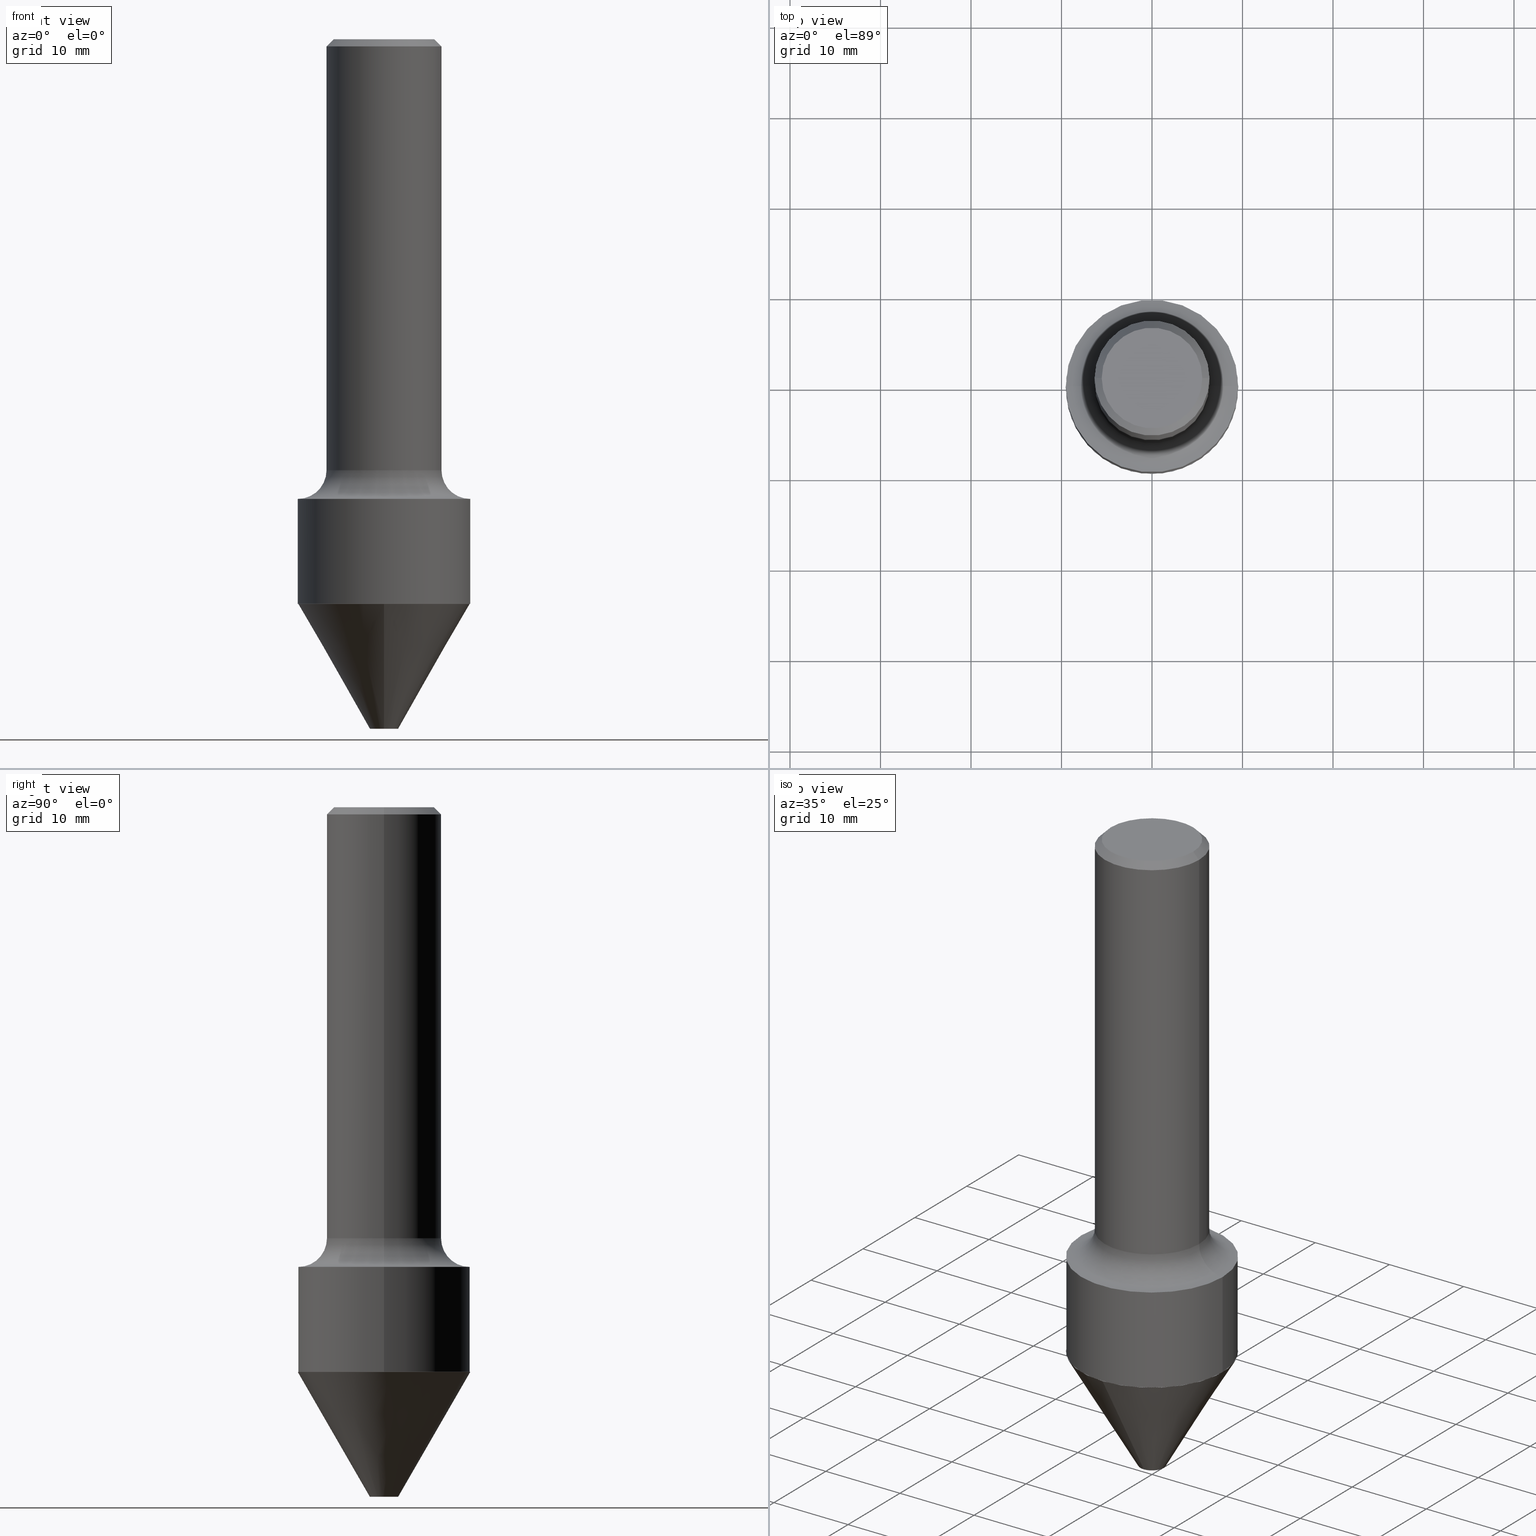
[diagram: canonical four-view strip — front | top / right | iso, engineering-drawing reading convention]
A machine part, canonical four-view strip (front | top / right | iso — engineering-drawing reading convention). The complete STEP part file that produces these views, byte-faithful:
ISO-10303-21;
HEADER;
FILE_DESCRIPTION (( 'STEP AP203' ),
    '1' );
FILE_NAME ('74043.STEP',
    '2025-06-20T12:29:06',
    ( '' ),
    ( '' ),
    'SwSTEP 2.0',
    'SolidWorks 2024',
    '' );
FILE_SCHEMA (( 'CONFIG_CONTROL_DESIGN' ));
ENDSEC;

DATA;
#1 = CARTESIAN_POINT ( 'NONE',  ( 6.007299188982596708E-29, -8.576831142614221112E-15, -2.456502071827208145 ) ) ;
#2 = CARTESIAN_POINT ( 'NONE',  ( 7.629862675297676574E-31, -1.089342177719068640E-16, -0.03120000000000020673 ) ) ;
#3 = CARTESIAN_POINT ( 'NONE',  ( -0.3745000000000000551, -5.913199370018534324E-15, -2.456502071827208145 ) ) ;
#4 = EDGE_LOOP ( 'NONE', ( #300, #338, #310, #416 ) ) ;
#5 = CIRCLE ( 'NONE', #269, 0.3750000000000000555 ) ;
#6 = ORIENTED_EDGE ( 'NONE', *, *, #475, .F. ) ;
#7 = CARTESIAN_POINT ( 'NONE',  ( 2.615119522793570118E-15, 0.3744999999999919504, -2.456502071827209033 ) ) ;
#8 = DIRECTION ( 'NONE',  ( -2.445468806185136597E-29, 3.491481338843145583E-15, 1.000000000000000000 ) ) ;
#9 = ORIENTED_EDGE ( 'NONE', *, *, #228, .T. ) ;
#10 = DIRECTION ( 'NONE',  ( -3.491481338843390130E-15, -0.5000000000000307532, 0.8660254037844207220 ) ) ;
#11 = DIRECTION ( 'NONE',  ( 1.000000000000000000, -6.982962677686266711E-15, 4.883557194083112901E-29 ) ) ;
#12 = DIRECTION ( 'NONE',  ( -2.537124591187716999E-29, 3.360225037996138960E-15, 1.000000000000000000 ) ) ;
#13 = DATE_TIME_ROLE ( 'creation_date' ) ;
#14 = VERTEX_POINT ( 'NONE', #270 ) ;
#15 = VECTOR ( 'NONE', #10, 39.37007874015748854 ) ;
#16 = DIRECTION ( 'NONE',  ( 7.105427357601001859E-15, 1.000000000000000000, -3.491481338843145583E-15 ) ) ;
#17 = APPROVAL_STATUS ( 'not_yet_approved' ) ;
#18 = CIRCLE ( 'NONE', #279, 0.3745000000000000551 ) ;
#19 = EDGE_CURVE ( 'NONE', #511, #14, #169, .T. ) ;
#20 = DIRECTION ( 'NONE',  ( -1.000000000000000000, 7.105427357601001859E-15, 0.000000000000000000 ) ) ;
#21 = ORIENTED_EDGE ( 'NONE', *, *, #228, .F. ) ;
#22 = PLANE ( 'NONE',  #104 ) ;
#23 = CARTESIAN_POINT ( 'NONE',  ( 6.006076454579503906E-29, -8.575085401944798820E-15, -2.456002071827207978 ) ) ;
#24 = CC_DESIGN_DATE_AND_TIME_ASSIGNMENT ( #378, #13, ( #54 ) ) ;
#25 = EDGE_CURVE ( 'NONE', #496, #405, #341, .T. ) ;
#26 = CARTESIAN_POINT ( 'NONE',  ( 7.629862675297676574E-31, -1.089342177719068640E-16, -0.03120000000000020673 ) ) ;
#27 = EDGE_CURVE ( 'NONE', #252, #405, #316, .T. ) ;
#28 = MECHANICAL_CONTEXT ( 'NONE', #320, 'mechanical' ) ;
#29 = AXIS2_PLACEMENT_3D ( 'NONE', #490, #263, #311 ) ;
#30 = DIMENSIONAL_EXPONENTS ( 1.000000000000000000, 0.000000000000000000, 0.000000000000000000, 0.000000000000000000, 0.000000000000000000, 0.000000000000000000, 0.000000000000000000 ) ;
#31 = ORIENTED_EDGE ( 'NONE', *, *, #315, .T. ) ;
#32 = CIRCLE ( 'NONE', #402, 0.3745000000000000551 ) ;
#33 = LOCAL_TIME ( 8, 29, 6.000000000000000000, #249 ) ;
#34 = CARTESIAN_POINT ( 'NONE',  ( 0.2500000000000001110, -1.745740669421567664E-15, 1.219044193948984649E-29 ) ) ;
#35 = EDGE_CURVE ( 'NONE', #111, #14, #130, .T. ) ;
#36 = CLOSED_SHELL ( 'NONE', ( #380, #352, #157, #171, #306, #486, #465, #500, #506, #266, #114, #360 ) ) ;
#37 = DIRECTION ( 'NONE',  ( -1.000000000000000000, 6.982962677686266711E-15, 0.000000000000000000 ) ) ;
#38 = PERSON_AND_ORGANIZATION ( #480, #282 ) ;
#39 = VECTOR ( 'NONE', #155, 39.37007874015748143 ) ;
#40 = FACE_OUTER_BOUND ( 'NONE', #412, .T. ) ;
#41 = CARTESIAN_POINT ( 'NONE',  ( 5.970236193676751076E-29, -8.633404227315247057E-15, -2.457002071827207423 ) ) ;
#42 = ORIENTED_EDGE ( 'NONE', *, *, #209, .T. ) ;
#43 = AXIS2_PLACEMENT_3D ( 'NONE', #138, #271, #350 ) ;
#44 = CARTESIAN_POINT ( 'NONE',  ( 0.3750000000000000555, -1.119369640607714884E-14, -2.456002071827207978 ) ) ;
#45 = APPROVAL_ROLE ( '' ) ;
#46 = ORIENTED_EDGE ( 'NONE', *, *, #251, .F. ) ;
#47 = MANIFOLD_SOLID_BREP ( 'Body-Move/Copy2[2]', #36 ) ;
#48 = CARTESIAN_POINT ( 'NONE',  ( -0.3750000000000000555, 2.664535259100376091E-15, -1.844600658845589598E-29 ) ) ;
#49 = ORIENTED_EDGE ( 'NONE', *, *, #286, .F. ) ;
#50 = DIRECTION ( 'NONE',  ( -2.445468806185136597E-29, 3.491481338843145583E-15, 1.000000000000000000 ) ) ;
#51 = COORDINATED_UNIVERSAL_TIME_OFFSET ( 5, 0, .BEHIND. ) ;
#52 = VERTEX_POINT ( 'NONE', #329 ) ;
#53 = DIRECTION ( 'NONE',  ( -1.000000000000000000, 6.982962677686266711E-15, 0.000000000000000000 ) ) ;
#54 = PRODUCT_DEFINITION ( 'UNKNOWN', '', #98, #424 ) ;
#55 = CARTESIAN_POINT ( 'NONE',  ( 0.000000000000000000, 0.000000000000000000, 0.000000000000000000 ) ) ;
#56 = DIRECTION ( 'NONE',  ( 6.982962677686265133E-15, 1.000000000000000000, -3.647327094344805043E-15 ) ) ;
#57 = AXIS2_PLACEMENT_3D ( 'NONE', #471, #192, #11 ) ;
#58 = CARTESIAN_POINT ( 'NONE',  ( -4.294522046776347563E-16, -0.06150000000001086542, -3.000000000000000888 ) ) ;
#59 =( LENGTH_UNIT ( ) NAMED_UNIT ( * ) SI_UNIT ( $, .METRE. ) );
#60 = ORIENTED_EDGE ( 'NONE', *, *, #115, .F. ) ;
#61 = EDGE_CURVE ( 'NONE', #246, #78, #75, .T. ) ;
#62 = DIRECTION ( 'NONE',  ( 2.537124591187716999E-29, -3.360225037996138566E-15, -1.000000000000000000 ) ) ;
#63 = AXIS2_PLACEMENT_3D ( 'NONE', #438, #235, #397 ) ;
#64 = DIRECTION ( 'NONE',  ( -2.445468806185136597E-29, 3.491481338843145583E-15, 1.000000000000000000 ) ) ;
#65 = DIRECTION ( 'NONE',  ( -6.982962677686265133E-15, -1.000000000000000000, 3.647327094344805043E-15 ) ) ;
#66 = CIRCLE ( 'NONE', #512, 0.2500000000000002220 ) ;
#67 = ORIENTED_EDGE ( 'NONE', *, *, #286, .T. ) ;
#68 = AXIS2_PLACEMENT_3D ( 'NONE', #160, #122, #446 ) ;
#69 = EDGE_CURVE ( 'NONE', #342, #496, #474, .T. ) ;
#70 = AXIS2_PLACEMENT_3D ( 'NONE', #173, #347, #499 ) ;
#71 = EDGE_CURVE ( 'NONE', #14, #511, #371, .T. ) ;
#72 = DIRECTION ( 'NONE',  ( 0.7071067811864026886, -2.468850131080739687E-15, 0.7071067811866923458 ) ) ;
#73 = LINE ( 'NONE', #48, #232 ) ;
#74 = APPROVAL_DATE_TIME ( #219, #485 ) ;
#75 = CIRCLE ( 'NONE', #383, 0.2500000000000000000 ) ;
#76 = DIRECTION ( 'NONE',  ( 0.7071067811865450192, -7.319954787623246579E-15, -0.7071067811865500152 ) ) ;
#77 = VECTOR ( 'NONE', #414, 39.37007874015748143 ) ;
#78 = VERTEX_POINT ( 'NONE', #128 ) ;
#79 = DIRECTION ( 'NONE',  ( 1.000000000000000000, -6.982962677686267499E-15, 4.876176775795936353E-29 ) ) ;
#80 = DIRECTION ( 'NONE',  ( 1.000000000000000000, -6.982962677686265922E-15, 4.876176775795935793E-29 ) ) ;
#81 = EDGE_CURVE ( 'NONE', #126, #78, #337, .T. ) ;
#82 = CIRCLE ( 'NONE', #43, 0.1249999999999998335 ) ;
#83 = CARTESIAN_POINT ( 'NONE',  ( 0.3745000000000000551, -1.119195066540772812E-14, -2.456502071827208145 ) ) ;
#84 = LINE ( 'NONE', #331, #457 ) ;
#85 = ORIENTED_EDGE ( 'NONE', *, *, #475, .T. ) ;
#86 = VECTOR ( 'NONE', #125, 39.37007874015748143 ) ;
#87 = CARTESIAN_POINT ( 'NONE',  ( 4.585254011597131679E-29, -6.546527510330899496E-15, -1.875000000000000444 ) ) ;
#88 = FACE_OUTER_BOUND ( 'NONE', #351, .T. ) ;
#89 = APPROVAL_ROLE ( '' ) ;
#90 = ORIENTED_EDGE ( 'NONE', *, *, #398, .F. ) ;
#91 = AXIS2_PLACEMENT_3D ( 'NONE', #105, #97, #394 ) ;
#92 = DIRECTION ( 'NONE',  ( 1.000000000000000000, -6.982962677686266711E-15, 0.000000000000000000 ) ) ;
#93 = CC_DESIGN_PERSON_AND_ORGANIZATION_ASSIGNMENT ( #401, #112, ( #184 ) ) ;
#94 = ORIENTED_EDGE ( 'NONE', *, *, #436, .F. ) ;
#95 = CIRCLE ( 'NONE', #200, 0.2187999999999999945 ) ;
#96 = FACE_OUTER_BOUND ( 'NONE', #289, .T. ) ;
#97 = DIRECTION ( 'NONE',  ( 2.537124591187716999E-29, -3.360225037996138960E-15, -1.000000000000000000 ) ) ;
#98 = PRODUCT_DEFINITION_FORMATION_WITH_SPECIFIED_SOURCE ( 'ANY', '', #184, .NOT_KNOWN. ) ;
#99 = CARTESIAN_POINT ( 'NONE',  ( 5.968967631381158416E-29, -8.631724114796249670E-15, -2.456502071827207700 ) ) ;
#100 = EDGE_LOOP ( 'NONE', ( #46, #489, #121, #245 ) ) ;
#101 = PLANE ( 'NONE',  #214 ) ;
#102 = PLANE ( 'NONE',  #443 ) ;
#103 = DIRECTION ( 'NONE',  ( 2.537124591187716999E-29, -3.360225037996138960E-15, -1.000000000000000000 ) ) ;
#104 = AXIS2_PLACEMENT_3D ( 'NONE', #503, #62, #344 ) ;
#105 = CARTESIAN_POINT ( 'NONE',  ( 5.968967631381158416E-29, -8.631724114796249670E-15, -2.456502071827207700 ) ) ;
#106 = DIRECTION ( 'NONE',  ( -1.000000000000000000, 6.982962677686265922E-15, -4.876176775795935793E-29 ) ) ;
#107 = AXIS2_PLACEMENT_3D ( 'NONE', #223, #64, #339 ) ;
#108 = ADVANCED_FACE ( 'NONE', ( #118 ), #323, .T. ) ;
#109 = ORIENTED_EDGE ( 'NONE', *, *, #451, .F. ) ;
#110 = CONICAL_SURFACE ( 'NONE', #348, 0.2500000000000000000, 0.7853981633974447263 ) ;
#111 = VERTEX_POINT ( 'NONE', #44 ) ;
#112 = PERSON_AND_ORGANIZATION_ROLE ( 'design_owner' ) ;
#113 = CC_DESIGN_PERSON_AND_ORGANIZATION_ASSIGNMENT ( #487, #322, ( #98 ) ) ;
#114 = ADVANCED_FACE ( 'NONE', ( #422 ), #110, .T. ) ;
#115 = EDGE_CURVE ( 'NONE', #168, #246, #84, .T. ) ;
#116 = CC_DESIGN_APPROVAL ( #142, ( #54 ) ) ;
#117 = CARTESIAN_POINT ( 'NONE',  ( 2.616865263462989255E-15, 0.3744999999999919504, -2.456502071827209033 ) ) ;
#118 = FACE_OUTER_BOUND ( 'NONE', #355, .T. ) ;
#119 = PERSON_AND_ORGANIZATION_ROLE ( 'creator' ) ;
#120 = PERSON_AND_ORGANIZATION_ROLE ( 'classification_officer' ) ;
#121 = ORIENTED_EDGE ( 'NONE', *, *, #451, .T. ) ;
#122 = DIRECTION ( 'NONE',  ( -2.445468806185136597E-29, 3.491481338843145583E-15, 1.000000000000000000 ) ) ;
#123 = DATE_TIME_ROLE ( 'classification_date' ) ;
#124 = EDGE_LOOP ( 'NONE', ( #60, #379, #373, #67 ) ) ;
#125 = DIRECTION ( 'NONE',  ( 3.552713678800717866E-15, 0.5000000000000366374, 0.8660254037844175024 ) ) ;
#126 = VERTEX_POINT ( 'NONE', #335 ) ;
#127 = DIRECTION ( 'NONE',  ( 6.982962677686265922E-15, 1.000000000000000000, -3.360225037996138566E-15 ) ) ;
#128 = CARTESIAN_POINT ( 'NONE',  ( -0.2500000000000000000, 1.636806451649659727E-15, -0.03120000000000020673 ) ) ;
#129 = ORIENTED_EDGE ( 'NONE', *, *, #251, .T. ) ;
#130 = LINE ( 'NONE', #298, #318 ) ;
#131 = EDGE_CURVE ( 'NONE', #492, #78, #452, .T. ) ;
#132 = DIRECTION ( 'NONE',  ( 2.445468806185136597E-29, -3.491481338843145583E-15, -1.000000000000000000 ) ) ;
#133 = ORIENTED_EDGE ( 'NONE', *, *, #209, .F. ) ;
#134 = CIRCLE ( 'NONE', #327, 0.2500000000000002220 ) ;
#135 = FACE_OUTER_BOUND ( 'NONE', #217, .T. ) ;
#136 = CARTESIAN_POINT ( 'NONE',  ( 6.007299188982596708E-29, -8.576831142614221112E-15, -2.456502071827208145 ) ) ;
#137 = LENGTH_MEASURE_WITH_UNIT ( LENGTH_MEASURE( 0.02539999999999999897 ), #59 );
#138 = CARTESIAN_POINT ( 'NONE',  ( 0.3750000000000000555, -9.165138514463248723E-15, -1.875000000000000444 ) ) ;
#139 = DIRECTION ( 'NONE',  ( -6.982962677686265922E-15, -1.000000000000000000, 3.642463991552350169E-15 ) ) ;
#140 = VECTOR ( 'NONE', #72, 39.37007874015748143 ) ;
#141 = DIRECTION ( 'NONE',  ( -6.982962677686265922E-15, -1.000000000000000000, 3.642463991552350169E-15 ) ) ;
#142 = APPROVAL ( #185, 'UNSPECIFIED' ) ;
#143 = PERSON_AND_ORGANIZATION ( #480, #282 ) ;
#144 = CIRCLE ( 'NONE', #395, 0.3745000000000005547 ) ;
#145 = ORIENTED_EDGE ( 'NONE', *, *, #19, .T. ) ;
#146 = EDGE_CURVE ( 'NONE', #492, #168, #95, .T. ) ;
#147 = ORIENTED_EDGE ( 'NONE', *, *, #315, .F. ) ;
#148 = EDGE_CURVE ( 'NONE', #493, #511, #73, .T. ) ;
#149 = VECTOR ( 'NONE', #243, 39.37007874015748143 ) ;
#150 = COORDINATED_UNIVERSAL_TIME_OFFSET ( 5, 0, .BEHIND. ) ;
#151 = DIRECTION ( 'NONE',  ( -2.445468806185136597E-29, 3.491481338843145583E-15, 1.000000000000000000 ) ) ;
#152 = DIRECTION ( 'NONE',  ( -2.445468806185136597E-29, 3.491481338843145583E-15, 1.000000000000000000 ) ) ;
#153 = AXIS2_PLACEMENT_3D ( 'NONE', #212, #411, #207 ) ;
#154 = EDGE_LOOP ( 'NONE', ( #332, #293, #513, #188 ) ) ;
#155 = DIRECTION ( 'NONE',  ( 4.937700262163874355E-15, 0.7071067811864486519, -0.7071067811866463826 ) ) ;
#156 = CARTESIAN_POINT ( 'NONE',  ( 5.970236193676751076E-29, -8.633404227315247057E-15, -2.457002071827207423 ) ) ;
#157 = ADVANCED_FACE ( 'NONE', ( #88 ), #396, .T. ) ;
#158 = ORIENTED_EDGE ( 'NONE', *, *, #146, .T. ) ;
#159 = DIRECTION ( 'NONE',  ( -6.982962677686265133E-15, -1.000000000000000000, 0.000000000000000000 ) ) ;
#160 = CARTESIAN_POINT ( 'NONE',  ( -1.871772216193327269E-46, 2.672394653685605698E-32, 7.654042494670949841E-18 ) ) ;
#161 = VERTEX_POINT ( 'NONE', #3 ) ;
#162 = LINE ( 'NONE', #34, #77 ) ;
#163 = DIRECTION ( 'NONE',  ( 1.000000000000000000, -6.982962677686266711E-15, 0.000000000000000000 ) ) ;
#164 = ORIENTED_EDGE ( 'NONE', *, *, #407, .F. ) ;
#165 = ADVANCED_FACE ( 'NONE', ( #377 ), #174, .T. ) ;
#166 = CC_DESIGN_APPROVAL ( #359, ( #509 ) ) ;
#167 = DIRECTION ( 'NONE',  ( -0.7071067811865450192, 2.468850131082230634E-15, -0.7071067811865500152 ) ) ;
#168 = VERTEX_POINT ( 'NONE', #199 ) ;
#169 = CIRCLE ( 'NONE', #107, 0.3750000000000000555 ) ;
#170 = CARTESIAN_POINT ( 'NONE',  ( 1.527872233877754946E-15, 0.2187999999999999945, -7.601090956915447608E-16 ) ) ;
#171 = ADVANCED_FACE ( 'NONE', ( #370 ), #362, .T. ) ;
#172 = CIRCLE ( 'NONE', #70, 0.3745000000000005547 ) ;
#173 = CARTESIAN_POINT ( 'NONE',  ( 5.968967631381158416E-29, -8.631724114796249670E-15, -2.456502071827207700 ) ) ;
#174 = CONICAL_SURFACE ( 'NONE', #518, 0.3750000000000000555, 0.5235987755983378955 ) ;
#175 = ORIENTED_EDGE ( 'NONE', *, *, #404, .T. ) ;
#176 = DIRECTION ( 'NONE',  ( -0.7071067811864026886, 7.493145998869830357E-15, 0.7071067811866923458 ) ) ;
#177 =( NAMED_UNIT ( * ) PLANE_ANGLE_UNIT ( ) SI_UNIT ( $, .RADIAN. ) );
#178 = CARTESIAN_POINT ( 'NONE',  ( 0.2500000000000000000, -1.824058717214789841E-15, -0.03120000000000020673 ) ) ;
#179 = FACE_OUTER_BOUND ( 'NONE', #468, .T. ) ;
#180 = APPROVAL_DATE_TIME ( #325, #142 ) ;
#181 = EDGE_CURVE ( 'NONE', #168, #492, #437, .T. ) ;
#182 = ORIENTED_EDGE ( 'NONE', *, *, #363, .F. ) ;
#183 = CC_DESIGN_SECURITY_CLASSIFICATION ( #509, ( #98 ) ) ;
#184 = PRODUCT ( '74043', '74043', '', ( #28 ) ) ;
#185 = APPROVAL_STATUS ( 'not_yet_approved' ) ;
#186 = EDGE_LOOP ( 'NONE', ( #221, #281, #42, #387 ) ) ;
#187 = AXIS2_PLACEMENT_3D ( 'NONE', #222, #16, #20 ) ;
#188 = ORIENTED_EDGE ( 'NONE', *, *, #131, .F. ) ;
#189 = APPROVAL_ROLE ( '' ) ;
#190 = FACE_OUTER_BOUND ( 'NONE', #186, .T. ) ;
#191 = CARTESIAN_POINT ( 'NONE',  ( 0.000000000000000000, 0.000000000000000000, 0.000000000000000000 ) ) ;
#192 = DIRECTION ( 'NONE',  ( -2.445468806185136597E-29, 3.491481338843145583E-15, 1.000000000000000000 ) ) ;
#193 = AXIS2_PLACEMENT_3D ( 'NONE', #198, #238, #159 ) ;
#194 = DIRECTION ( 'NONE',  ( -6.982962677686265922E-15, -1.000000000000000000, 3.642463991552350169E-15 ) ) ;
#195 = VERTEX_POINT ( 'NONE', #247 ) ;
#196 = CYLINDRICAL_SURFACE ( 'NONE', #375, 0.2500000000000001110 ) ;
#197 = EDGE_CURVE ( 'NONE', #161, #493, #415, .T. ) ;
#198 = CARTESIAN_POINT ( 'NONE',  ( 7.347889590207925829E-29, -1.045799946114149675E-14, -3.000000000000000888 ) ) ;
#199 = CARTESIAN_POINT ( 'NONE',  ( 0.2187999999999999945, -1.662567839563600480E-15, 7.654042494682104827E-18 ) ) ;
#200 = AXIS2_PLACEMENT_3D ( 'NONE', #418, #50, #254 ) ;
#201 = DATE_AND_TIME ( #419, #33 ) ;
#202 = ORIENTED_EDGE ( 'NONE', *, *, #27, .F. ) ;
#203 = DIRECTION ( 'NONE',  ( 1.000000000000000000, -6.982962677686268288E-15, 0.000000000000000000 ) ) ;
#204 = CARTESIAN_POINT ( 'NONE',  ( -0.2500000000000000000, 1.636806451649659727E-15, -0.03120000000000020673 ) ) ;
#205 = ORIENTED_EDGE ( 'NONE', *, *, #81, .F. ) ;
#206 = LINE ( 'NONE', #7, #39 ) ;
#207 = DIRECTION ( 'NONE',  ( 1.000000000000000000, -6.982962677686268288E-15, 0.000000000000000000 ) ) ;
#208 = CC_DESIGN_PERSON_AND_ORGANIZATION_ASSIGNMENT ( #38, #119, ( #98 ) ) ;
#209 = EDGE_CURVE ( 'NONE', #307, #14, #82, .T. ) ;
#210 = ORIENTED_EDGE ( 'NONE', *, *, #197, .F. ) ;
#211 = ORIENTED_EDGE ( 'NONE', *, *, #81, .T. ) ;
#212 = CARTESIAN_POINT ( 'NONE',  ( 6.007299188982596708E-29, -8.576831142614221112E-15, -2.456502071827208145 ) ) ;
#213 = CALENDAR_DATE ( 2025, 20, 6 ) ;
#214 = AXIS2_PLACEMENT_3D ( 'NONE', #224, #388, #391 ) ;
#215 = DIRECTION ( 'NONE',  ( -2.445468806185136597E-29, 3.491481338843145583E-15, 1.000000000000000000 ) ) ;
#216 = PERSON_AND_ORGANIZATION ( #480, #282 ) ;
#217 = EDGE_LOOP ( 'NONE', ( #90, #262, #145, #133 ) ) ;
#218 = FACE_OUTER_BOUND ( 'NONE', #154, .T. ) ;
#219 = DATE_AND_TIME ( #501, #428 ) ;
#220 = AXIS2_PLACEMENT_3D ( 'NONE', #330, #408, #80 ) ;
#221 = ORIENTED_EDGE ( 'NONE', *, *, #356, .F. ) ;
#222 = CARTESIAN_POINT ( 'NONE',  ( -0.3750000000000000555, -3.881992251230523799E-15, -1.875000000000000444 ) ) ;
#223 = CARTESIAN_POINT ( 'NONE',  ( 4.890937612370273754E-29, -6.982962677686291954E-15, -2.000000000000000444 ) ) ;
#224 = CARTESIAN_POINT ( 'NONE',  ( 6.007299188982596708E-29, -8.576831142614219535E-15, -2.456502071827207700 ) ) ;
#225 = CARTESIAN_POINT ( 'NONE',  ( 5.968967631381158416E-29, -8.631724114796249670E-15, -2.456502071827207700 ) ) ;
#226 = MANIFOLD_SOLID_BREP ( 'Body-Move/Copy2[1]', #277 ) ;
#227 = DIRECTION ( 'NONE',  ( 2.438088387897960049E-29, -3.491481338843145188E-15, -1.000000000000000000 ) ) ;
#228 = EDGE_CURVE ( 'NONE', #493, #111, #413, .T. ) ;
#229 = AXIS2_PLACEMENT_3D ( 'NONE', #26, #426, #53 ) ;
#230 = ORIENTED_EDGE ( 'NONE', *, *, #197, .T. ) ;
#231 = APPLICATION_PROTOCOL_DEFINITION ( 'international standard', 'config_control_design', 1994, #320 ) ;
#232 = VECTOR ( 'NONE', #239, 39.37007874015748143 ) ;
#233 = EDGE_LOOP ( 'NONE', ( #175, #211, #456, #6 ) ) ;
#234 = PRODUCT_DEFINITION_SHAPE ( 'NONE', 'NONE',  #54 ) ;
#235 = DIRECTION ( 'NONE',  ( 0.000000000000000000, 0.000000000000000000, 1.000000000000000000 ) ) ;
#236 = AXIS2_PLACEMENT_3D ( 'NONE', #429, #317, #312 ) ;
#237 = APPROVAL_STATUS ( 'not_yet_approved' ) ;
#238 = DIRECTION ( 'NONE',  ( -2.537124591187716999E-29, 3.360225037996138960E-15, 1.000000000000000000 ) ) ;
#239 = DIRECTION ( 'NONE',  ( -2.445468806185136877E-29, 3.491481338843145188E-15, 1.000000000000000000 ) ) ;
#240 = EDGE_CURVE ( 'NONE', #399, #52, #144, .T. ) ;
#241 = CARTESIAN_POINT ( 'NONE',  ( -2.618611004132290063E-15, -0.3750000000000085487, -2.457002071827206091 ) ) ;
#242 = AXIS2_PLACEMENT_3D ( 'NONE', #255, #400, #473 ) ;
#243 = DIRECTION ( 'NONE',  ( -2.445468806185136877E-29, 3.491481338843145188E-15, 1.000000000000000000 ) ) ;
#244 = SHAPE_DEFINITION_REPRESENTATION ( #234, #309 ) ;
#245 = ORIENTED_EDGE ( 'NONE', *, *, #25, .T. ) ;
#246 = VERTEX_POINT ( 'NONE', #178 ) ;
#247 = CARTESIAN_POINT ( 'NONE',  ( 0.3745000000000000551, -1.119195066540772812E-14, -2.456502071827208145 ) ) ;
#248 = AXIS2_PLACEMENT_3D ( 'NONE', #156, #12, #448 ) ;
#249 = COORDINATED_UNIVERSAL_TIME_OFFSET ( 5, 0, .BEHIND. ) ;
#250 = ORIENTED_EDGE ( 'NONE', *, *, #25, .F. ) ;
#251 = EDGE_CURVE ( 'NONE', #52, #405, #460, .T. ) ;
#252 = VERTEX_POINT ( 'NONE', #58 ) ;
#253 = CARTESIAN_POINT ( 'NONE',  ( 4.585254011597131679E-29, -6.546527510330899496E-15, -1.875000000000000444 ) ) ;
#254 = DIRECTION ( 'NONE',  ( 1.000000000000000000, -6.982962677686266711E-15, 4.876319244907601817E-29 ) ) ;
#255 = CARTESIAN_POINT ( 'NONE',  ( 7.347889590207925829E-29, -1.045799946114149675E-14, -3.000000000000000888 ) ) ;
#256 = DIRECTION ( 'NONE',  ( 2.537124591187716999E-29, -3.360225037996138566E-15, -1.000000000000000000 ) ) ;
#257 = DIRECTION ( 'NONE',  ( 1.000000000000000000, -6.982962677686266711E-15, 0.000000000000000000 ) ) ;
#258 = ORIENTED_EDGE ( 'NONE', *, *, #326, .F. ) ;
#259 = CARTESIAN_POINT ( 'NONE',  ( 5.970236193676751076E-29, -8.633404227315247057E-15, -2.457002071827207423 ) ) ;
#260 = ORIENTED_EDGE ( 'NONE', *, *, #407, .T. ) ;
#261 = APPROVAL_PERSON_ORGANIZATION ( #470, #142, #189 ) ;
#262 = ORIENTED_EDGE ( 'NONE', *, *, #356, .T. ) ;
#263 = DIRECTION ( 'NONE',  ( -2.445468806185136597E-29, 3.491481338843145583E-15, 1.000000000000000000 ) ) ;
#264 = CARTESIAN_POINT ( 'NONE',  ( 7.629862675297676574E-31, -1.089342177719068640E-16, -0.03120000000000020673 ) ) ;
#265 = COORDINATED_UNIVERSAL_TIME_OFFSET ( 5, 0, .BEHIND. ) ;
#266 = ADVANCED_FACE ( 'NONE', ( #179 ), #102, .F. ) ;
#267 = ORIENTED_EDGE ( 'NONE', *, *, #363, .T. ) ;
#268 = DIRECTION ( 'NONE',  ( -2.445468806185136597E-29, 3.491481338843145583E-15, 1.000000000000000000 ) ) ;
#269 = AXIS2_PLACEMENT_3D ( 'NONE', #259, #462, #141 ) ;
#270 = CARTESIAN_POINT ( 'NONE',  ( 0.3750000000000000555, -9.601573681818641971E-15, -2.000000000000000444 ) ) ;
#271 = DIRECTION ( 'NONE',  ( -6.982962677686266711E-15, -1.000000000000000000, 3.491481338843145583E-15 ) ) ;
#272 = CARTESIAN_POINT ( 'NONE',  ( -2.618611004132290457E-15, -0.3750000000000086597, -2.457002071827206091 ) ) ;
#273 = APPROVAL_PERSON_ORGANIZATION ( #216, #485, #89 ) ;
#274 = PRODUCT_RELATED_PRODUCT_CATEGORY ( 'detail', '', ( #184 ) ) ;
#275 = ADVANCED_FACE ( 'NONE', ( #432 ), #22, .F. ) ;
#276 = CARTESIAN_POINT ( 'NONE',  ( 1.550759520796487283E-15, 0.06149999999998995159, -3.000000000000000888 ) ) ;
#277 = CLOSED_SHELL ( 'NONE', ( #343, #165, #275, #423, #108, #514 ) ) ;
#278 = ORIENTED_EDGE ( 'NONE', *, *, #381, .F. ) ;
#279 = AXIS2_PLACEMENT_3D ( 'NONE', #1, #374, #285 ) ;
#280 = EDGE_CURVE ( 'NONE', #111, #493, #467, .T. ) ;
#281 = ORIENTED_EDGE ( 'NONE', *, *, #404, .F. ) ;
#282 = ORGANIZATION ( 'UNSPECIFIED', 'UNSPECIFIED', '' ) ;
#283 = AXIS2_PLACEMENT_3D ( 'NONE', #491, #152, #257 ) ;
#284 = PERSON_AND_ORGANIZATION ( #480, #282 ) ;
#285 = DIRECTION ( 'NONE',  ( 1.000000000000000000, -6.982962677686268288E-15, 0.000000000000000000 ) ) ;
#286 = EDGE_CURVE ( 'NONE', #78, #246, #463, .T. ) ;
#287 = SECURITY_CLASSIFICATION_LEVEL ( 'unclassified' ) ;
#288 = CARTESIAN_POINT ( 'NONE',  ( 7.629862675297676574E-31, -1.089342177719068640E-16, -0.03120000000000020673 ) ) ;
#289 = EDGE_LOOP ( 'NONE', ( #210, #466, #260, #21 ) ) ;
#290 = PLANE ( 'NONE',  #494 ) ;
#291 = TOROIDAL_SURFACE ( 'NONE', #57, 0.3750000000000000555, 0.1249999999999998473 ) ;
#292 = APPROVAL_DATE_TIME ( #516, #359 ) ;
#293 = ORIENTED_EDGE ( 'NONE', *, *, #115, .T. ) ;
#294 = CARTESIAN_POINT ( 'NONE',  ( -0.2500000000000001110, 1.776356839400251254E-15, -1.229733772563727146E-29 ) ) ;
#295 = PERSON_AND_ORGANIZATION ( #480, #282 ) ;
#296 = AXIS2_PLACEMENT_3D ( 'NONE', #99, #103, #56 ) ;
#297 = DIRECTION ( 'NONE',  ( -2.445468806185136597E-29, 3.491481338843145583E-15, 1.000000000000000000 ) ) ;
#298 = CARTESIAN_POINT ( 'NONE',  ( 0.3750000000000000555, -2.618611004132350016E-15, 1.828566290923476203E-29 ) ) ;
#299 = UNCERTAINTY_MEASURE_WITH_UNIT (LENGTH_MEASURE( 1.000000000000000082E-05 ), #434, 'distance_accuracy_value', 'NONE');
#300 = ORIENTED_EDGE ( 'NONE', *, *, #280, .T. ) ;
#301 = DIRECTION ( 'NONE',  ( -2.445468806185136597E-29, 3.491481338843145583E-15, 1.000000000000000000 ) ) ;
#302 = CIRCLE ( 'NONE', #242, 0.06150000000000040851 ) ;
#303 = APPLICATION_CONTEXT ( 'configuration controlled 3d designs of mechanical parts and assemblies' ) ;
#304 = EDGE_LOOP ( 'NONE', ( #182, #129, #31, #109 ) ) ;
#305 = FACE_OUTER_BOUND ( 'NONE', #517, .T. ) ;
#306 = ADVANCED_FACE ( 'NONE', ( #135 ), #410, .F. ) ;
#307 = VERTEX_POINT ( 'NONE', #505 ) ;
#308 = DIRECTION ( 'NONE',  ( -2.445468806185136597E-29, 3.491481338843145583E-15, 1.000000000000000000 ) ) ;
#309 = ADVANCED_BREP_SHAPE_REPRESENTATION ( '74043', ( #226, #47, #63 ), #354 ) ;
#310 = ORIENTED_EDGE ( 'NONE', *, *, #71, .F. ) ;
#311 = DIRECTION ( 'NONE',  ( 1.000000000000000000, -6.982962677686268288E-15, 0.000000000000000000 ) ) ;
#312 = DIRECTION ( 'NONE',  ( 1.000000000000000000, -6.982962677686266711E-15, 4.883557194083112901E-29 ) ) ;
#313 = CIRCLE ( 'NONE', #187, 0.1249999999999998335 ) ;
#314 = CC_DESIGN_PERSON_AND_ORGANIZATION_ASSIGNMENT ( #284, #120, ( #509 ) ) ;
#315 = EDGE_CURVE ( 'NONE', #405, #496, #5, .T. ) ;
#316 = LINE ( 'NONE', #272, #15 ) ;
#317 = DIRECTION ( 'NONE',  ( -2.445468806185136597E-29, 3.491481338843145583E-15, 1.000000000000000000 ) ) ;
#318 = VECTOR ( 'NONE', #409, 39.37007874015748143 ) ;
#319 = AXIS2_PLACEMENT_3D ( 'NONE', #23, #507, #392 ) ;
#320 = APPLICATION_CONTEXT ( 'configuration controlled 3d designs of mechanical parts and assemblies' ) ;
#321 = EDGE_LOOP ( 'NONE', ( #258, #357 ) ) ;
#322 = PERSON_AND_ORGANIZATION_ROLE ( 'design_supplier' ) ;
#323 = CONICAL_SURFACE ( 'NONE', #248, 0.3750000000000000555, 0.5235987755983378955 ) ;
#324 = APPLICATION_PROTOCOL_DEFINITION ( 'international standard', 'config_control_design', 1994, #303 ) ;
#325 = DATE_AND_TIME ( #510, #488 ) ;
#326 = EDGE_CURVE ( 'NONE', #195, #161, #32, .T. ) ;
#327 = AXIS2_PLACEMENT_3D ( 'NONE', #253, #297, #203 ) ;
#328 = AXIS2_PLACEMENT_3D ( 'NONE', #455, #308, #92 ) ;
#329 = CARTESIAN_POINT ( 'NONE',  ( -2.570971624664823008E-15, -0.3745000000000091589, -2.456502071827206368 ) ) ;
#330 = CARTESIAN_POINT ( 'NONE',  ( 0.000000000000000000, 0.000000000000000000, 0.000000000000000000 ) ) ;
#331 = CARTESIAN_POINT ( 'NONE',  ( 0.2500000000000000000, -1.824058717214789841E-15, -0.03120000000000020673 ) ) ;
#332 = ORIENTED_EDGE ( 'NONE', *, *, #181, .F. ) ;
#333 = CYLINDRICAL_SURFACE ( 'NONE', #220, 0.3750000000000000555 ) ;
#334 = VECTOR ( 'NONE', #433, 39.37007874015748143 ) ;
#335 = CARTESIAN_POINT ( 'NONE',  ( -0.2500000000000002776, -4.544299044758281461E-15, -1.875000000000000444 ) ) ;
#336 = DIRECTION ( 'NONE',  ( 1.000000000000000000, -6.982962677686268288E-15, 0.000000000000000000 ) ) ;
#337 = LINE ( 'NONE', #294, #149 ) ;
#338 = ORIENTED_EDGE ( 'NONE', *, *, #148, .T. ) ;
#339 = DIRECTION ( 'NONE',  ( 1.000000000000000000, -6.982962677686266711E-15, 0.000000000000000000 ) ) ;
#340 = CARTESIAN_POINT ( 'NONE',  ( 2.664535259100435256E-15, 0.3749999999999914513, -2.457002071827208756 ) ) ;
#341 = CIRCLE ( 'NONE', #393, 0.3750000000000000555 ) ;
#342 = VERTEX_POINT ( 'NONE', #276 ) ;
#343 = ADVANCED_FACE ( 'NONE', ( #382 ), #386, .T. ) ;
#344 = DIRECTION ( 'NONE',  ( 6.982962677686265922E-15, 1.000000000000000000, -3.360225037996138566E-15 ) ) ;
#345 = AXIS2_PLACEMENT_3D ( 'NONE', #264, #301, #495 ) ;
#346 =( NAMED_UNIT ( * ) SI_UNIT ( $, .STERADIAN. ) SOLID_ANGLE_UNIT ( ) );
#347 = DIRECTION ( 'NONE',  ( -2.537124591187716999E-29, 3.360225037996138960E-15, 1.000000000000000000 ) ) ;
#348 = AXIS2_PLACEMENT_3D ( 'NONE', #288, #132, #37 ) ;
#349 = ORIENTED_EDGE ( 'NONE', *, *, #398, .T. ) ;
#350 = DIRECTION ( 'NONE',  ( 1.000000000000000000, -6.982962677686272233E-15, 0.000000000000000000 ) ) ;
#351 = EDGE_LOOP ( 'NONE', ( #484, #230, #441, #164 ) ) ;
#352 = ADVANCED_FACE ( 'NONE', ( #218 ), #454, .T. ) ;
#353 = DIRECTION ( 'NONE',  ( -2.537124591187716999E-29, 3.360225037996138960E-15, 1.000000000000000000 ) ) ;
#354 =( GEOMETRIC_REPRESENTATION_CONTEXT ( 3 ) GLOBAL_UNCERTAINTY_ASSIGNED_CONTEXT ( ( #299 ) ) GLOBAL_UNIT_ASSIGNED_CONTEXT ( ( #434, #177, #346 ) ) REPRESENTATION_CONTEXT ( 'NONE', 'WORKASPACE' ) );
#355 = EDGE_LOOP ( 'NONE', ( #482, #376, #476, #250 ) ) ;
#356 = EDGE_CURVE ( 'NONE', #126, #511, #313, .T. ) ;
#357 = ORIENTED_EDGE ( 'NONE', *, *, #442, .F. ) ;
#358 = CC_DESIGN_APPROVAL ( #485, ( #98 ) ) ;
#359 = APPROVAL ( #237, 'UNSPECIFIED' ) ;
#360 = ADVANCED_FACE ( 'NONE', ( #305 ), #458, .T. ) ;
#361 = AXIS2_PLACEMENT_3D ( 'NONE', #55, #268, #385 ) ;
#362 = CYLINDRICAL_SURFACE ( 'NONE', #498, 0.3750000000000000555 ) ;
#363 = EDGE_CURVE ( 'NONE', #52, #399, #172, .T. ) ;
#364 = CALENDAR_DATE ( 2025, 20, 6 ) ;
#365 = ORIENTED_EDGE ( 'NONE', *, *, #436, .T. ) ;
#366 = VECTOR ( 'NONE', #167, 39.37007874015748143 ) ;
#367 = DIRECTION ( 'NONE',  ( -2.445468806185136597E-29, 3.491481338843145583E-15, 1.000000000000000000 ) ) ;
#368 = APPROVAL_PERSON_ORGANIZATION ( #295, #359, #45 ) ;
#369 = CARTESIAN_POINT ( 'NONE',  ( -0.2187999999999999945, 1.582339342763707436E-15, 7.654042494660075270E-18 ) ) ;
#370 = FACE_OUTER_BOUND ( 'NONE', #4, .T. ) ;
#371 = CIRCLE ( 'NONE', #283, 0.3750000000000000555 ) ;
#372 = COORDINATED_UNIVERSAL_TIME_OFFSET ( 5, 0, .BEHIND. ) ;
#373 = ORIENTED_EDGE ( 'NONE', *, *, #131, .T. ) ;
#374 = DIRECTION ( 'NONE',  ( -2.445468806185136597E-29, 3.491481338843145583E-15, 1.000000000000000000 ) ) ;
#375 = AXIS2_PLACEMENT_3D ( 'NONE', #191, #477, #79 ) ;
#376 = ORIENTED_EDGE ( 'NONE', *, *, #381, .T. ) ;
#377 = FACE_OUTER_BOUND ( 'NONE', #479, .T. ) ;
#378 = DATE_AND_TIME ( #213, #406 ) ;
#379 = ORIENTED_EDGE ( 'NONE', *, *, #146, .F. ) ;
#380 = ADVANCED_FACE ( 'NONE', ( #430 ), #196, .T. ) ;
#381 = EDGE_CURVE ( 'NONE', #342, #252, #302, .T. ) ;
#382 = FACE_OUTER_BOUND ( 'NONE', #304, .T. ) ;
#383 = AXIS2_PLACEMENT_3D ( 'NONE', #2, #8, #163 ) ;
#384 = ORIENTED_EDGE ( 'NONE', *, *, #240, .T. ) ;
#385 = DIRECTION ( 'NONE',  ( 1.000000000000000000, -6.982962677686267499E-15, 4.876176775795936353E-29 ) ) ;
#386 = CONICAL_SURFACE ( 'NONE', #91, 0.3745000000000005547, 0.7853981633973118326 ) ;
#387 = ORIENTED_EDGE ( 'NONE', *, *, #71, .T. ) ;
#388 = DIRECTION ( 'NONE',  ( -2.438088387897960049E-29, 3.491481338843145188E-15, 1.000000000000000000 ) ) ;
#389 = CARTESIAN_POINT ( 'NONE',  ( -2.569256500165382422E-15, -0.3745000000000091589, -2.456502071827206368 ) ) ;
#390 = CARTESIAN_POINT ( 'NONE',  ( 5.970236193676751076E-29, -8.633404227315247057E-15, -2.457002071827207423 ) ) ;
#391 = DIRECTION ( 'NONE',  ( 1.000000000000000000, -6.982962677686265922E-15, 4.876176775795935793E-29 ) ) ;
#392 = DIRECTION ( 'NONE',  ( 1.000000000000000000, -6.982962677686266711E-15, 0.000000000000000000 ) ) ;
#393 = AXIS2_PLACEMENT_3D ( 'NONE', #390, #504, #139 ) ;
#394 = DIRECTION ( 'NONE',  ( 6.982962677686265133E-15, 1.000000000000000000, -3.647327094344805043E-15 ) ) ;
#395 = AXIS2_PLACEMENT_3D ( 'NONE', #225, #353, #65 ) ;
#396 = CONICAL_SURFACE ( 'NONE', #153, 0.3745000000000000551, 0.7853981633972434429 ) ;
#397 = DIRECTION ( 'NONE',  ( 1.000000000000000000, 0.000000000000000000, 0.000000000000000000 ) ) ;
#398 = EDGE_CURVE ( 'NONE', #126, #307, #66, .T. ) ;
#399 = VERTEX_POINT ( 'NONE', #117 ) ;
#400 = DIRECTION ( 'NONE',  ( -2.537124591187716999E-29, 3.360225037996138960E-15, 1.000000000000000000 ) ) ;
#401 = PERSON_AND_ORGANIZATION ( #480, #282 ) ;
#402 = AXIS2_PLACEMENT_3D ( 'NONE', #136, #215, #464 ) ;
#403 = CC_DESIGN_PERSON_AND_ORGANIZATION_ASSIGNMENT ( #143, #508, ( #54 ) ) ;
#404 = EDGE_CURVE ( 'NONE', #307, #126, #134, .T. ) ;
#405 = VERTEX_POINT ( 'NONE', #241 ) ;
#406 = LOCAL_TIME ( 8, 29, 6.000000000000000000, #51 ) ;
#407 = EDGE_CURVE ( 'NONE', #195, #111, #447, .T. ) ;
#408 = DIRECTION ( 'NONE',  ( -2.445468806185136597E-29, 3.491481338843145583E-15, 1.000000000000000000 ) ) ;
#409 = DIRECTION ( 'NONE',  ( -2.445468806185136877E-29, 3.491481338843145188E-15, 1.000000000000000000 ) ) ;
#410 = TOROIDAL_SURFACE ( 'NONE', #236, 0.3750000000000000555, 0.1249999999999998473 ) ;
#411 = DIRECTION ( 'NONE',  ( -2.445468806185136597E-29, 3.491481338843145583E-15, 1.000000000000000000 ) ) ;
#412 = EDGE_LOOP ( 'NONE', ( #94, #278 ) ) ;
#413 = CIRCLE ( 'NONE', #328, 0.3750000000000000555 ) ;
#414 = DIRECTION ( 'NONE',  ( -2.445468806185136877E-29, 3.491481338843145188E-15, 1.000000000000000000 ) ) ;
#415 = LINE ( 'NONE', #483, #469 ) ;
#416 = ORIENTED_EDGE ( 'NONE', *, *, #35, .F. ) ;
#417 = CARTESIAN_POINT ( 'NONE',  ( -1.127470829448816336E-28, -3.712661956447348334E-14, -3.000000000000000888 ) ) ;
#418 = CARTESIAN_POINT ( 'NONE',  ( -1.871772216193327269E-46, 2.672394653685605698E-32, 7.654042494670949841E-18 ) ) ;
#419 = CALENDAR_DATE ( 2025, 20, 6 ) ;
#420 = ORIENTED_EDGE ( 'NONE', *, *, #69, .T. ) ;
#421 = CARTESIAN_POINT ( 'NONE',  ( 2.664535259100435650E-15, 0.3749999999999915068, -2.457002071827208756 ) ) ;
#422 = FACE_OUTER_BOUND ( 'NONE', #124, .T. ) ;
#423 = ADVANCED_FACE ( 'NONE', ( #40 ), #290, .T. ) ;
#424 = DESIGN_CONTEXT ( 'detailed design', #303, 'design' ) ;
#425 = ORIENTED_EDGE ( 'NONE', *, *, #19, .F. ) ;
#426 = DIRECTION ( 'NONE',  ( 2.445468806185136597E-29, -3.491481338843145583E-15, -1.000000000000000000 ) ) ;
#427 = ORIENTED_EDGE ( 'NONE', *, *, #181, .T. ) ;
#428 = LOCAL_TIME ( 8, 29, 6.000000000000000000, #265 ) ;
#429 = CARTESIAN_POINT ( 'NONE',  ( 4.585254011597131679E-29, -6.546527510330899496E-15, -1.875000000000000444 ) ) ;
#430 = FACE_OUTER_BOUND ( 'NONE', #233, .T. ) ;
#431 = FACE_OUTER_BOUND ( 'NONE', #100, .T. ) ;
#432 = FACE_OUTER_BOUND ( 'NONE', #502, .T. ) ;
#433 = DIRECTION ( 'NONE',  ( -4.851104656540300843E-15, -0.7071067811864533148, -0.7071067811866417196 ) ) ;
#434 =( CONVERSION_BASED_UNIT ( 'INCH', #137 ) LENGTH_UNIT ( ) NAMED_UNIT ( #30 ) );
#435 = CIRCLE ( 'NONE', #193, 0.06150000000000040851 ) ;
#436 = EDGE_CURVE ( 'NONE', #252, #342, #435, .T. ) ;
#437 = CIRCLE ( 'NONE', #68, 0.2187999999999999945 ) ;
#438 = CARTESIAN_POINT ( 'NONE',  ( 0.000000000000000000, 0.000000000000000000, 0.000000000000000000 ) ) ;
#439 = CONICAL_SURFACE ( 'NONE', #296, 0.3745000000000005547, 0.7853981633973118326 ) ;
#440 = DIRECTION ( 'NONE',  ( -2.537124591187716999E-29, 3.360225037996138960E-15, 1.000000000000000000 ) ) ;
#441 = ORIENTED_EDGE ( 'NONE', *, *, #280, .F. ) ;
#442 = EDGE_CURVE ( 'NONE', #161, #195, #18, .T. ) ;
#443 = AXIS2_PLACEMENT_3D ( 'NONE', #170, #227, #106 ) ;
#444 = ORIENTED_EDGE ( 'NONE', *, *, #35, .T. ) ;
#445 = FACE_OUTER_BOUND ( 'NONE', #453, .T. ) ;
#446 = DIRECTION ( 'NONE',  ( 1.000000000000000000, -6.982962677686266711E-15, 4.876319244907601817E-29 ) ) ;
#447 = LINE ( 'NONE', #83, #140 ) ;
#448 = DIRECTION ( 'NONE',  ( -6.982962677686265922E-15, -1.000000000000000000, 3.642463991552350169E-15 ) ) ;
#449 = ORIENTED_EDGE ( 'NONE', *, *, #148, .F. ) ;
#450 = CC_DESIGN_DATE_AND_TIME_ASSIGNMENT ( #201, #123, ( #509 ) ) ;
#451 = EDGE_CURVE ( 'NONE', #399, #496, #206, .T. ) ;
#452 = LINE ( 'NONE', #204, #366 ) ;
#453 = EDGE_LOOP ( 'NONE', ( #449, #9, #444, #425 ) ) ;
#454 = CONICAL_SURFACE ( 'NONE', #229, 0.2500000000000000000, 0.7853981633974447263 ) ;
#455 = CARTESIAN_POINT ( 'NONE',  ( 6.006076454579503906E-29, -8.575085401944798820E-15, -2.456002071827207978 ) ) ;
#456 = ORIENTED_EDGE ( 'NONE', *, *, #61, .F. ) ;
#457 = VECTOR ( 'NONE', #76, 39.37007874015748143 ) ;
#458 = CYLINDRICAL_SURFACE ( 'NONE', #361, 0.2500000000000001110 ) ;
#459 = FACE_OUTER_BOUND ( 'NONE', #321, .T. ) ;
#460 = LINE ( 'NONE', #389, #334 ) ;
#461 = CARTESIAN_POINT ( 'NONE',  ( -0.3750000000000000555, -4.318427418585916257E-15, -2.000000000000000444 ) ) ;
#462 = DIRECTION ( 'NONE',  ( -2.537124591187716999E-29, 3.360225037996138960E-15, 1.000000000000000000 ) ) ;
#463 = CIRCLE ( 'NONE', #345, 0.2500000000000000000 ) ;
#464 = DIRECTION ( 'NONE',  ( 1.000000000000000000, -6.982962677686268288E-15, 0.000000000000000000 ) ) ;
#465 = ADVANCED_FACE ( 'NONE', ( #445 ), #333, .T. ) ;
#466 = ORIENTED_EDGE ( 'NONE', *, *, #442, .T. ) ;
#467 = CIRCLE ( 'NONE', #319, 0.3750000000000000555 ) ;
#468 = EDGE_LOOP ( 'NONE', ( #158, #427 ) ) ;
#469 = VECTOR ( 'NONE', #176, 39.37007874015748143 ) ;
#470 = PERSON_AND_ORGANIZATION ( #480, #282 ) ;
#471 = CARTESIAN_POINT ( 'NONE',  ( 4.585254011597131679E-29, -6.546527510330899496E-15, -1.875000000000000444 ) ) ;
#472 = LOCAL_TIME ( 8, 29, 6.000000000000000000, #372 ) ;
#473 = DIRECTION ( 'NONE',  ( -6.982962677686265133E-15, -1.000000000000000000, 0.000000000000000000 ) ) ;
#474 = LINE ( 'NONE', #340, #86 ) ;
#475 = EDGE_CURVE ( 'NONE', #307, #246, #162, .T. ) ;
#476 = ORIENTED_EDGE ( 'NONE', *, *, #27, .T. ) ;
#477 = DIRECTION ( 'NONE',  ( -2.445468806185136597E-29, 3.491481338843145583E-15, 1.000000000000000000 ) ) ;
#478 = DIRECTION ( 'NONE',  ( 1.000000000000000000, -6.982962677686265922E-15, 4.876176775795935793E-29 ) ) ;
#479 = EDGE_LOOP ( 'NONE', ( #365, #420, #147, #202 ) ) ;
#480 = PERSON ( 'UNSPECIFIED', 'UNSPECIFIED', 'UNSPECIFIED', ('UNSPECIFIED'), ('UNSPECIFIED'), ('UNSPECIFIED') ) ;
#481 = CONICAL_SURFACE ( 'NONE', #29, 0.3745000000000000551, 0.7853981633972434429 ) ;
#482 = ORIENTED_EDGE ( 'NONE', *, *, #69, .F. ) ;
#483 = CARTESIAN_POINT ( 'NONE',  ( -0.3745000000000000551, -5.915848597192645525E-15, -2.456502071827208145 ) ) ;
#484 = ORIENTED_EDGE ( 'NONE', *, *, #326, .T. ) ;
#485 = APPROVAL ( #17, 'UNSPECIFIED' ) ;
#486 = ADVANCED_FACE ( 'NONE', ( #190 ), #291, .F. ) ;
#487 = PERSON_AND_ORGANIZATION ( #480, #282 ) ;
#488 = LOCAL_TIME ( 8, 29, 6.000000000000000000, #150 ) ;
#489 = ORIENTED_EDGE ( 'NONE', *, *, #240, .F. ) ;
#490 = CARTESIAN_POINT ( 'NONE',  ( 6.007299188982596708E-29, -8.576831142614221112E-15, -2.456502071827208145 ) ) ;
#491 = CARTESIAN_POINT ( 'NONE',  ( 4.890937612370273754E-29, -6.982962677686291954E-15, -2.000000000000000444 ) ) ;
#492 = VERTEX_POINT ( 'NONE', #369 ) ;
#493 = VERTEX_POINT ( 'NONE', #497 ) ;
#494 = AXIS2_PLACEMENT_3D ( 'NONE', #417, #256, #127 ) ;
#495 = DIRECTION ( 'NONE',  ( 1.000000000000000000, -6.982962677686266711E-15, 0.000000000000000000 ) ) ;
#496 = VERTEX_POINT ( 'NONE', #421 ) ;
#497 = CARTESIAN_POINT ( 'NONE',  ( -0.3750000000000000555, -5.114488780715169690E-15, -2.456002071827207978 ) ) ;
#498 = AXIS2_PLACEMENT_3D ( 'NONE', #515, #367, #478 ) ;
#499 = DIRECTION ( 'NONE',  ( -6.982962677686265133E-15, -1.000000000000000000, 3.647327094344805043E-15 ) ) ;
#500 = ADVANCED_FACE ( 'NONE', ( #96 ), #481, .T. ) ;
#501 = CALENDAR_DATE ( 2025, 20, 6 ) ;
#502 = EDGE_LOOP ( 'NONE', ( #384, #267 ) ) ;
#503 = CARTESIAN_POINT ( 'NONE',  ( 6.007299188982596708E-29, -8.576831142614219535E-15, -2.456502071827207700 ) ) ;
#504 = DIRECTION ( 'NONE',  ( -2.537124591187716999E-29, 3.360225037996138960E-15, 1.000000000000000000 ) ) ;
#505 = CARTESIAN_POINT ( 'NONE',  ( 0.2500000000000002220, -8.292268179752468540E-15, -1.875000000000000444 ) ) ;
#506 = ADVANCED_FACE ( 'NONE', ( #459 ), #101, .F. ) ;
#507 = DIRECTION ( 'NONE',  ( -2.445468806185136597E-29, 3.491481338843145583E-15, 1.000000000000000000 ) ) ;
#508 = PERSON_AND_ORGANIZATION_ROLE ( 'creator' ) ;
#509 = SECURITY_CLASSIFICATION ( '', '', #287 ) ;
#510 = CALENDAR_DATE ( 2025, 20, 6 ) ;
#511 = VERTEX_POINT ( 'NONE', #461 ) ;
#512 = AXIS2_PLACEMENT_3D ( 'NONE', #87, #151, #336 ) ;
#513 = ORIENTED_EDGE ( 'NONE', *, *, #61, .T. ) ;
#514 = ADVANCED_FACE ( 'NONE', ( #431 ), #439, .T. ) ;
#515 = CARTESIAN_POINT ( 'NONE',  ( 0.000000000000000000, 0.000000000000000000, 0.000000000000000000 ) ) ;
#516 = DATE_AND_TIME ( #364, #472 ) ;
#517 = EDGE_LOOP ( 'NONE', ( #205, #349, #85, #49 ) ) ;
#518 = AXIS2_PLACEMENT_3D ( 'NONE', #41, #440, #194 ) ;
ENDSEC;
END-ISO-10303-21;
